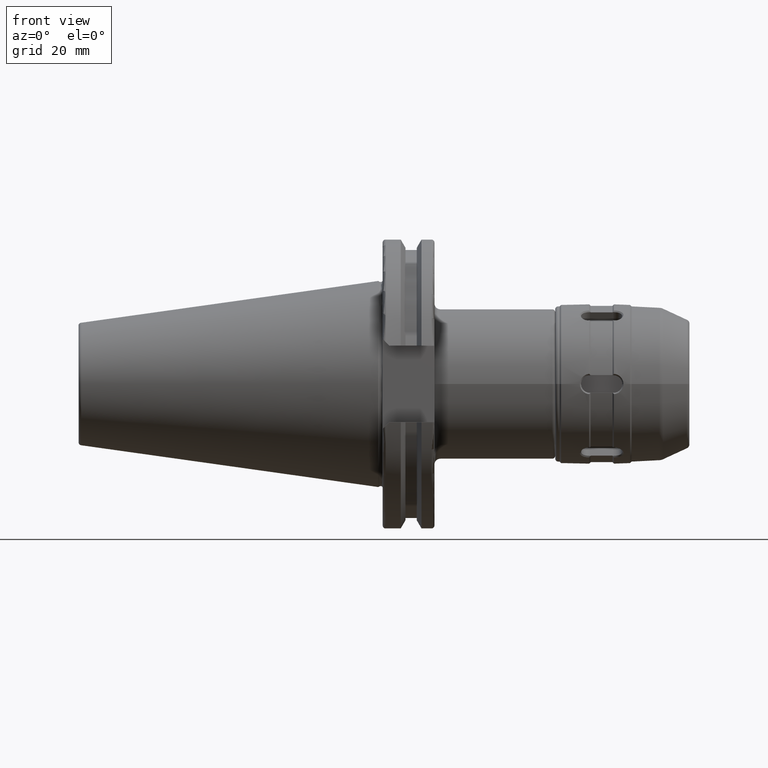
[diagram: clean part render]
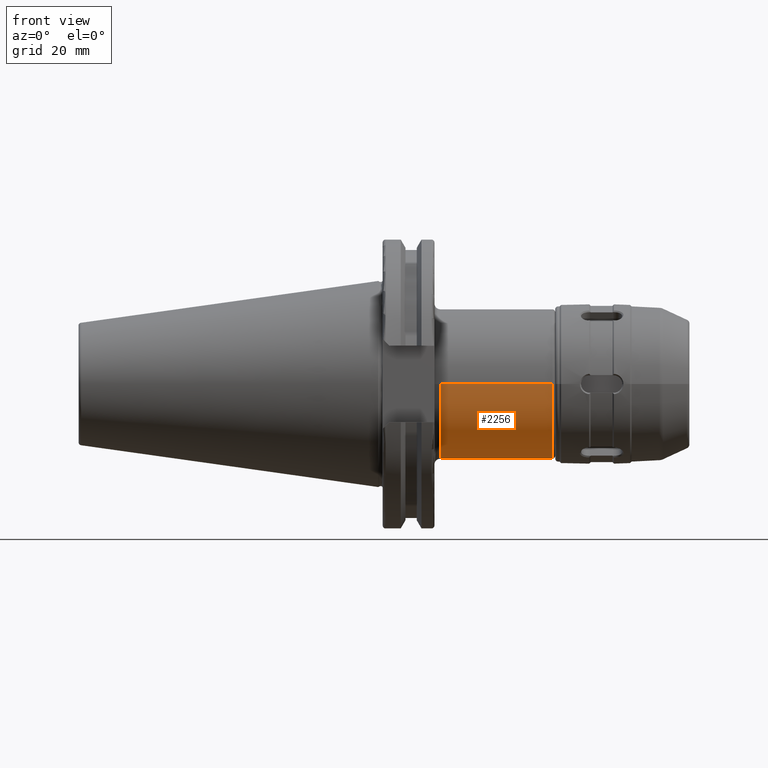
[diagram: same view with one face highlighted and labeled with its STEP entity id]
A machine part, front view. The second image highlights one B-rep face of the part: STEP entity #2256.
In plain terms, the highlighted cylindrical surface (partial cylindrical patch) has radius 25.5016 mm, axis along (1, 0, 0).
Its self-contained STEP definition (entity closure, byte-faithful):
#534=CARTESIAN_POINT('',(2.323E0,0.E0,0.E0));
#535=DIRECTION('',(-1.E0,0.E0,0.E0));
#536=DIRECTION('',(0.E0,1.E0,0.E0));
#537=AXIS2_PLACEMENT_3D('',#534,#535,#536);
#539=DIRECTION('',(-1.E0,0.E0,2.271499938817E-12));
#540=VECTOR('',#539,1.494E0);
#541=CARTESIAN_POINT('',(2.323E0,1.004E0,-3.259576741797E-12));
#542=LINE('',#541,#540);
#543=CARTESIAN_POINT('',(8.29E-1,0.E0,0.E0));
#544=DIRECTION('',(1.E0,0.E0,0.E0));
#545=DIRECTION('',(0.E0,-1.E0,0.E0));
#546=AXIS2_PLACEMENT_3D('',#543,#544,#545);
#548=DIRECTION('',(-1.E0,0.E0,-2.271572742929E-12));
#549=VECTOR('',#548,1.494E0);
#550=CARTESIAN_POINT('',(2.323E0,-1.004E0,3.259321282326E-12));
#551=LINE('',#550,#549);
#1274=CARTESIAN_POINT('',(8.29E-1,1.004E0,0.E0));
#1275=CARTESIAN_POINT('',(8.29E-1,-1.004E0,0.E0));
#1276=VERTEX_POINT('',#1274);
#1277=VERTEX_POINT('',#1275);
#1382=CARTESIAN_POINT('',(2.323E0,1.004E0,0.E0));
#1383=CARTESIAN_POINT('',(2.323E0,-1.004E0,0.E0));
#1384=VERTEX_POINT('',#1382);
#1385=VERTEX_POINT('',#1383);
#2242=CARTESIAN_POINT('',(0.E0,0.E0,0.E0));
#2243=DIRECTION('',(1.E0,0.E0,0.E0));
#2244=DIRECTION('',(0.E0,-1.E0,0.E0));
#2245=AXIS2_PLACEMENT_3D('',#2242,#2243,#2244);
#2246=CYLINDRICAL_SURFACE('',#2245,1.004E0);
#2247=ORIENTED_EDGE('',*,*,#2232,.F.);
#2249=ORIENTED_EDGE('',*,*,#2248,.T.);
#2251=ORIENTED_EDGE('',*,*,#2250,.F.);
#2253=ORIENTED_EDGE('',*,*,#2252,.F.);
#2254=EDGE_LOOP('',(#2247,#2249,#2251,#2253));
#2255=FACE_OUTER_BOUND('',#2254,.F.);
#2256=ADVANCED_FACE('',(#2255),#2246,.T.);
#538=CIRCLE('',#537,1.004E0);
#547=CIRCLE('',#546,1.004E0);
#2232=EDGE_CURVE('',#1384,#1385,#538,.T.);
#2248=EDGE_CURVE('',#1384,#1276,#542,.T.);
#2250=EDGE_CURVE('',#1277,#1276,#547,.T.);
#2252=EDGE_CURVE('',#1385,#1277,#551,.T.);